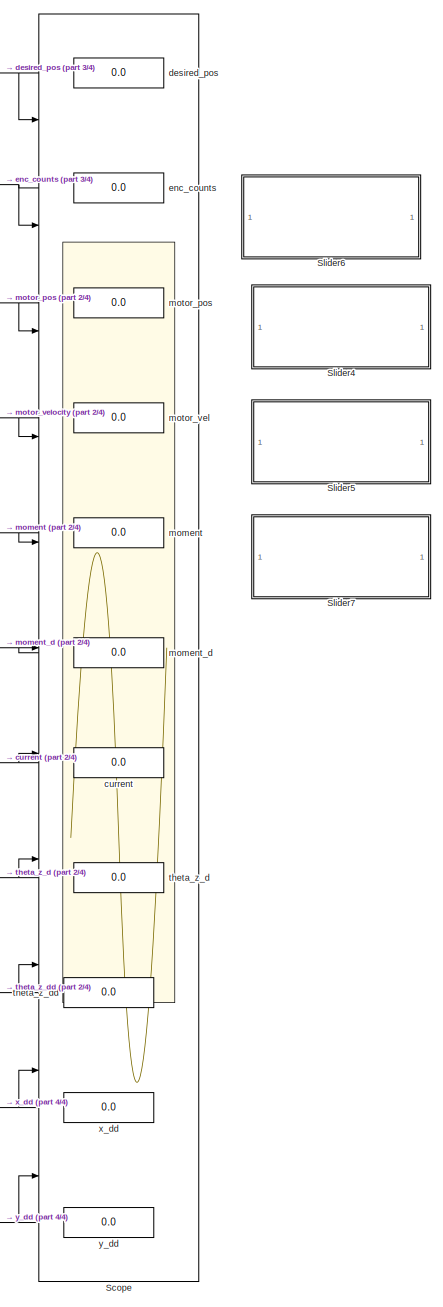
[diagram: root canvas - part 1/4, right side, full height]
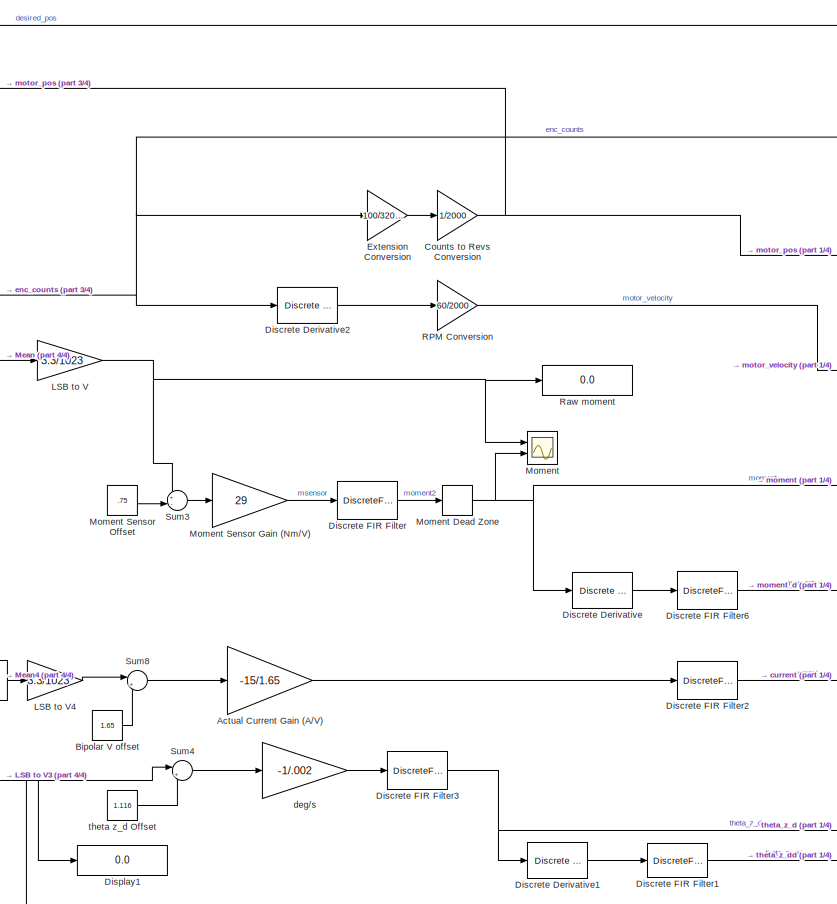
[diagram: root canvas - part 2/4, central region]
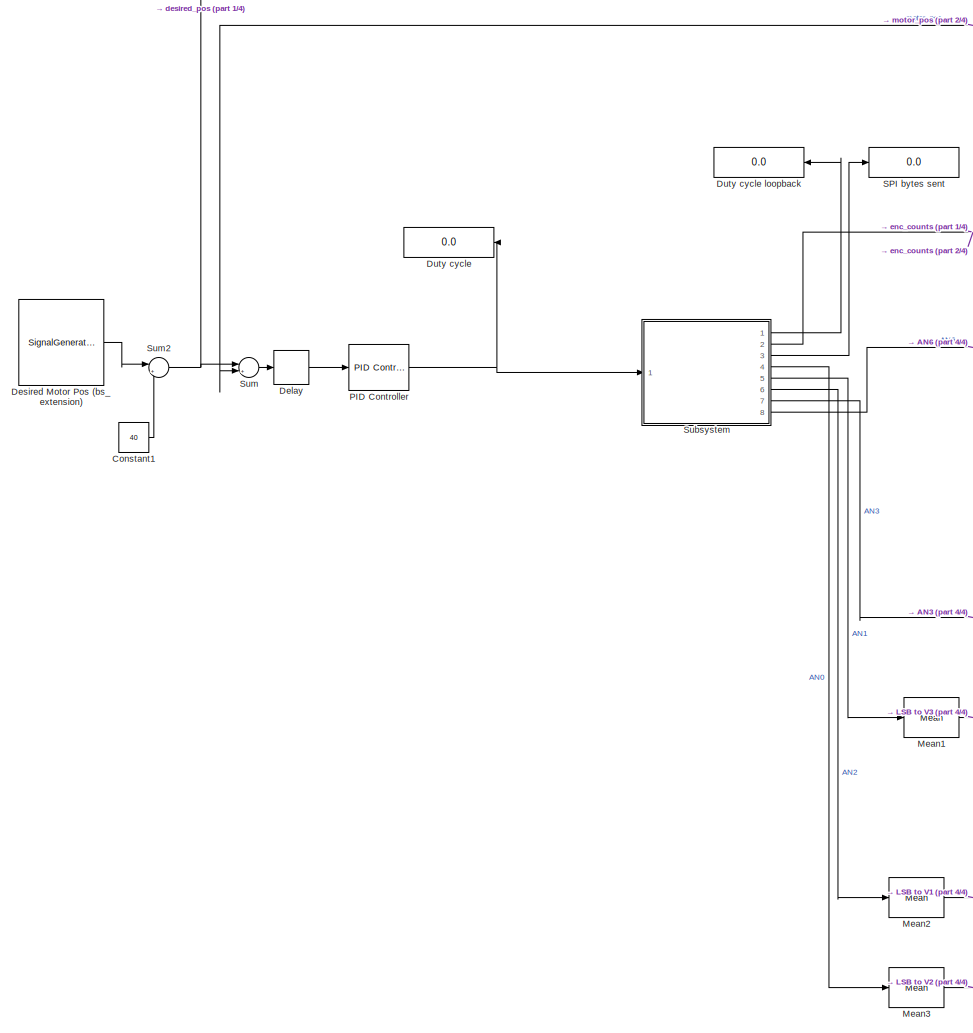
[diagram: root canvas - part 3/4, left side, full height]
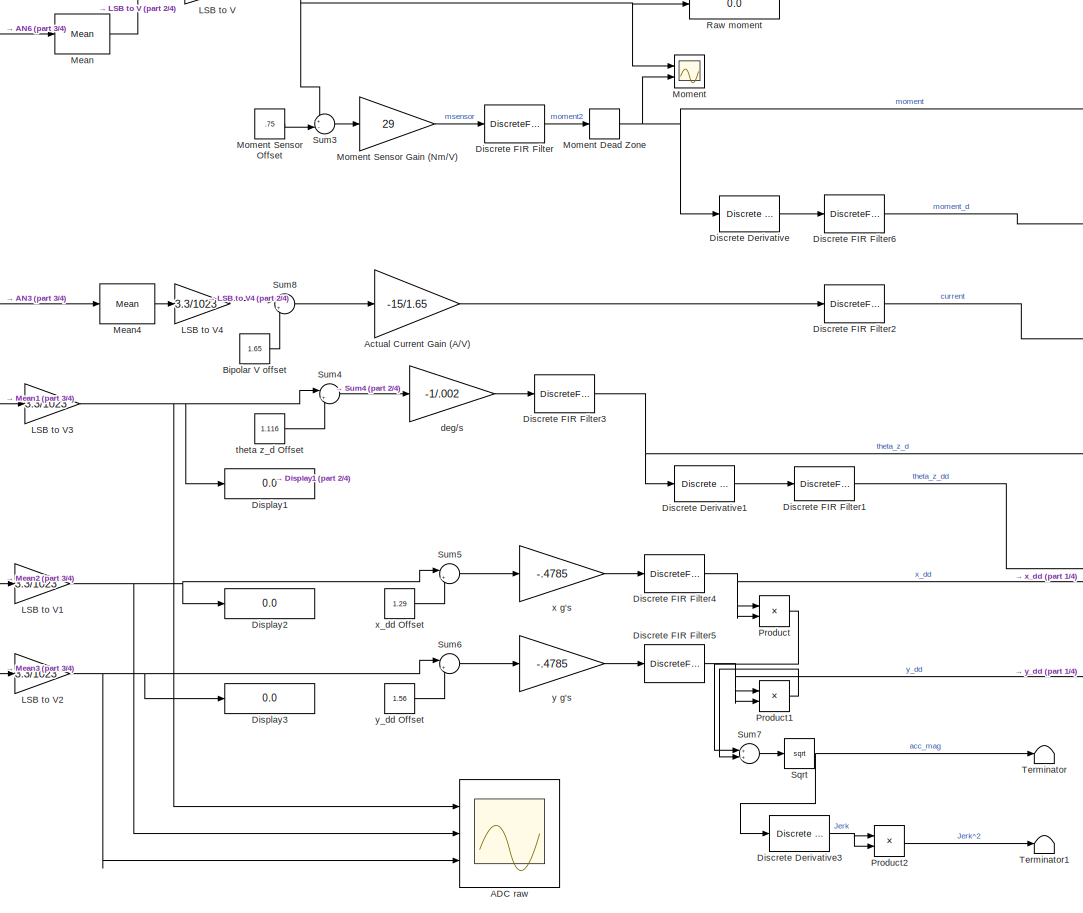
[diagram: root canvas - part 4/4, central region]
MODEL slx_aa104c078e16
KIND model
CONFIG AbsTol = auto
CONFIG EnableMultiTasking = on
CONFIG FixedStep = .001
CONFIG MaxStep = auto
CONFIG MinStep = auto
CONFIG RelTol = 1e-3
CONFIG SampleTimeConstraint = Unconstrained
CONFIG Solver = FixedStepAuto
CONFIG SolverName = FixedStepAuto
CONFIG StartTime = 0.0
CONFIG StopTime = inf
BLOCK [Scope] ADC raw
  NumInputPorts = 3
  Ports = [3]
  ScopeSpecificationString = Simulink.scopes.TimeScopeBlockCfg('CurrentConfiguration', extmgr.ConfigurationSet(extmgr.Configuration('Core','General UI',true),extmgr.Configuration('Core','Source UI',true),extmgr.Configuration('Sources','WiredSimulink',true,'DataLoggingVariableName','ScopeData1','DataLogging',true,'DataLoggingSaveFormat','StructureWithTime'),extmgr.Configuration('Visuals','Time Domain',true,'SerializedDisplays'...<+2721ch>
BLOCK [Gain] Actual Current Gain (A//V)
  Gain = -15/1.65
  OutDataTypeStr = Inherit: Inherit via internal rule
  ParamDataTypeStr = Inherit: Inherit via internal rule
  SaturateOnIntegerOverflow = off
BLOCK [Constant] Bipolar V offset
  Value = 1.65
BLOCK [Constant] Constant1
  Value = 40
BLOCK [Gain] Counts to Revs Conversion
  Commented = through
  Gain = 1/2000
  OutDataTypeStr = double
  ParamDataTypeStr = double
  SaturateOnIntegerOverflow = off
BLOCK [Delay] Delay
  DelayLength = 1
  InitialCondition = 0
  InputPortMap = u0
  Ports = [1, 1]
BLOCK [SignalGenerator] Desired Motor Pos (bs_extension)
  Amplitude = 40
  Ports = [0, 1]
  WaveForm = square
BLOCK [Reference] Discrete Derivative  REF=simulink/Discrete/Discrete Derivative
  Ports = [1, 1]
  SourceBlock = simulink/Discrete/Discrete Derivative
  SourceProductBaseCode = SL
  SourceProductName = Simulink
  SourceType = Discrete Derivative
BLOCK [Reference] Discrete Derivative1  REF=simulink/Discrete/Discrete Derivative
  Ports = [1, 1]
  SourceBlock = simulink/Discrete/Discrete Derivative
  SourceProductBaseCode = SL
  SourceProductName = Simulink
  SourceType = Discrete Derivative
BLOCK [Reference] Discrete Derivative2  REF=simulink/Discrete/Discrete Derivative
  Ports = [1, 1]
  SourceBlock = simulink/Discrete/Discrete Derivative
  SourceProductBaseCode = SL
  SourceProductName = Simulink
  SourceType = Discrete Derivative
BLOCK [Reference] Discrete Derivative3  REF=simulink/Discrete/Discrete Derivative
  Ports = [1, 1]
  SourceBlock = simulink/Discrete/Discrete Derivative
  SourceProductBaseCode = SL
  SourceProductName = Simulink
  SourceType = Discrete Derivative
BLOCK [DiscreteFir] Discrete FIR Filter
  Coefficients = [.1 .1 .1 .1 .1 .1 .1 .1 .1 .1]
  InputPortMap = u0
  OutputPortMap = o0
  Ports = [1, 1]
BLOCK [DiscreteFir] Discrete FIR Filter1
  Coefficients = [.1 .1 .1 .1 .1 .1 .1 .1 .1 .1]
  InputPortMap = u0
  OutputPortMap = o0
  Ports = [1, 1]
BLOCK [DiscreteFir] Discrete FIR Filter2
  Coefficients = [.1 .1 .1 .1 .1 .1 .1 .1 .1 .1]
  InputPortMap = u0
  OutputPortMap = o0
  Ports = [1, 1]
BLOCK [DiscreteFir] Discrete FIR Filter3
  Coefficients = [.1 .1 .1 .1 .1 .1 .1 .1 .1 .1]
  InputPortMap = u0
  OutputPortMap = o0
  Ports = [1, 1]
BLOCK [DiscreteFir] Discrete FIR Filter4
  Coefficients = [.1 .1 .1 .1 .1 .1 .1 .1 .1 .1]
  InputPortMap = u0
  OutputPortMap = o0
  Ports = [1, 1]
BLOCK [DiscreteFir] Discrete FIR Filter5
  Coefficients = [.1 .1 .1 .1 .1 .1 .1 .1 .1 .1]
  InputPortMap = u0
  OutputPortMap = o0
  Ports = [1, 1]
BLOCK [DiscreteFir] Discrete FIR Filter6
  Coefficients = [.1 .1 .1 .1 .1 .1 .1 .1 .1 .1]
  InputPortMap = u0
  OutputPortMap = o0
  Ports = [1, 1]
BLOCK [Display] Display1
  Decimation = 1
  Ports = [1]
BLOCK [Display] Display2
  Decimation = 1
  Ports = [1]
BLOCK [Display] Display3
  Decimation = 1
  Ports = [1]
BLOCK [Display] Duty cycle
  Decimation = 1
  Ports = [1]
BLOCK [Display] Duty cycle loopback
  Decimation = 1
  Ports = [1]
BLOCK [Gain] Extension Conversion
  Gain = 100/32000
  OutDataTypeStr = double
  ParamDataTypeStr = double
  SaturateOnIntegerOverflow = off
BLOCK [Gain] LSB to V
  Gain = 3.3/1023
  OutDataTypeStr = Inherit: Inherit via internal rule
  ParamDataTypeStr = Inherit: Inherit via internal rule
  SaturateOnIntegerOverflow = off
BLOCK [Gain] LSB to V1
  Gain = 3.3/1023
  OutDataTypeStr = Inherit: Inherit via internal rule
  ParamDataTypeStr = Inherit: Inherit via internal rule
  SaturateOnIntegerOverflow = off
BLOCK [Gain] LSB to V2
  Gain = 3.3/1023
  OutDataTypeStr = Inherit: Inherit via internal rule
  ParamDataTypeStr = Inherit: Inherit via internal rule
  SaturateOnIntegerOverflow = off
BLOCK [Gain] LSB to V3
  Gain = 3.3/1023
  OutDataTypeStr = Inherit: Inherit via internal rule
  ParamDataTypeStr = Inherit: Inherit via internal rule
  SaturateOnIntegerOverflow = off
BLOCK [Gain] LSB to V4
  Gain = 3.3/1023
  OutDataTypeStr = Inherit: Inherit via internal rule
  ParamDataTypeStr = Inherit: Inherit via internal rule
  SaturateOnIntegerOverflow = off
BLOCK [Reference] Mean  REF=dspstat3/Mean
  Ports = [1, 1]
  SourceBlock = dspstat3/Mean
  SourceProductBaseCode = DS
  SourceProductName = DSP System Toolbox
  SourceType = Mean
  UserDataPersistent = on
BLOCK [Reference] Mean1  REF=dspstat3/Mean
  Ports = [1, 1]
  SourceBlock = dspstat3/Mean
  SourceProductBaseCode = DS
  SourceProductName = DSP System Toolbox
  SourceType = Mean
  UserDataPersistent = on
BLOCK [Reference] Mean2  REF=dspstat3/Mean
  Ports = [1, 1]
  SourceBlock = dspstat3/Mean
  SourceProductBaseCode = DS
  SourceProductName = DSP System Toolbox
  SourceType = Mean
  UserDataPersistent = on
BLOCK [Reference] Mean3  REF=dspstat3/Mean
  Ports = [1, 1]
  SourceBlock = dspstat3/Mean
  SourceProductBaseCode = DS
  SourceProductName = DSP System Toolbox
  SourceType = Mean
  UserDataPersistent = on
BLOCK [Reference] Mean4  REF=dspstat3/Mean
  Ports = [1, 1]
  SourceBlock = dspstat3/Mean
  SourceProductBaseCode = DS
  SourceProductName = DSP System Toolbox
  SourceType = Mean
  UserDataPersistent = on
BLOCK [Scope] Moment
  NumInputPorts = 2
  Ports = [2]
  ScopeSpecificationString = Simulink.scopes.TimeScopeBlockCfg('CurrentConfiguration', extmgr.ConfigurationSet(extmgr.Configuration('Core','General UI',true),extmgr.Configuration('Core','Source UI',true),extmgr.Configuration('Sources','WiredSimulink',true,'DataLoggingVariableName','ScopeData2','DataLoggingLimitDataPoints',true,'DataLoggingSaveFormat','Array','DataLoggingDecimation','1','DataLoggingDecimateData',true),extmgr.C...<+165ch>
BLOCK [DeadZone] Moment Dead Zone
  LowerValue = -.25
  UpperValue = .25
BLOCK [Gain] Moment Sensor Gain (Nm//V)
  Gain = 29
  OutDataTypeStr = Inherit: Inherit via internal rule
  ParamDataTypeStr = Inherit: Inherit via internal rule
  SaturateOnIntegerOverflow = off
BLOCK [Constant] Moment Sensor Offset
  Value = .75
BLOCK [Reference] PID Controller  REF=simulink/Continuous/PID Controller
  Ports = [1, 1]
  SourceBlock = simulink/Continuous/PID Controller
  SourceProductBaseCode = SL
  SourceProductName = Simulink
  SourceType = PID 1dof
BLOCK [Product] Product
  InputSameDT = off
  OutDataTypeStr = Inherit: Inherit via internal rule
  Ports = [2, 1]
  RndMeth = Floor
  SaturateOnIntegerOverflow = off
BLOCK [Product] Product1
  InputSameDT = off
  OutDataTypeStr = Inherit: Inherit via internal rule
  Ports = [2, 1]
  RndMeth = Floor
  SaturateOnIntegerOverflow = off
BLOCK [Product] Product2
  InputSameDT = off
  OutDataTypeStr = Inherit: Inherit via internal rule
  Ports = [2, 1]
  RndMeth = Floor
  SaturateOnIntegerOverflow = off
BLOCK [Gain] RPM Conversion
  Gain = 60/2000
  OutDataTypeStr = double
  ParamDataTypeStr = double
  SaturateOnIntegerOverflow = off
BLOCK [Display] Raw moment
  Decimation = 1
  Ports = [1]
BLOCK [Display] SPI bytes sent
  Decimation = 1
  Ports = [1]
BLOCK [Scope] Scope
  NumInputPorts = 11
  Ports = [11]
  ScopeSpecificationString = Simulink.scopes.TimeScopeBlockCfg('CurrentConfiguration', extmgr.ConfigurationSet(extmgr.Configuration('Core','General UI',true),extmgr.Configuration('Core','Source UI',true),extmgr.Configuration('Sources','WiredSimulink',true,'DataLogging',true,'DataLoggingSaveFormat','StructureWithTime'),extmgr.Configuration('Visuals','Time Domain',true,'SerializedDisplays',{struct('MinYLimReal','-10','MaxYLimRe...<+8820ch>
BLOCK [SubSystem] Slider4
  DialogController = hmiCreateDDGDialog
  IsWebBlock = on
  MaskHideContents = on
  Ports = []
  RequestExecContextInheritance = off
  Variant = off
BLOCK [SubSystem] Slider5
  DialogController = hmiCreateDDGDialog
  IsWebBlock = on
  MaskHideContents = on
  Ports = []
  RequestExecContextInheritance = off
  Variant = off
BLOCK [SubSystem] Slider6
  DialogController = hmiCreateDDGDialog
  IsWebBlock = on
  MaskHideContents = on
  Ports = []
  RequestExecContextInheritance = off
  Variant = off
BLOCK [SubSystem] Slider7
  DialogController = hmiCreateDDGDialog
  IsWebBlock = on
  MaskHideContents = on
  Ports = []
  RequestExecContextInheritance = off
  Variant = off
BLOCK [Sqrt] Sqrt
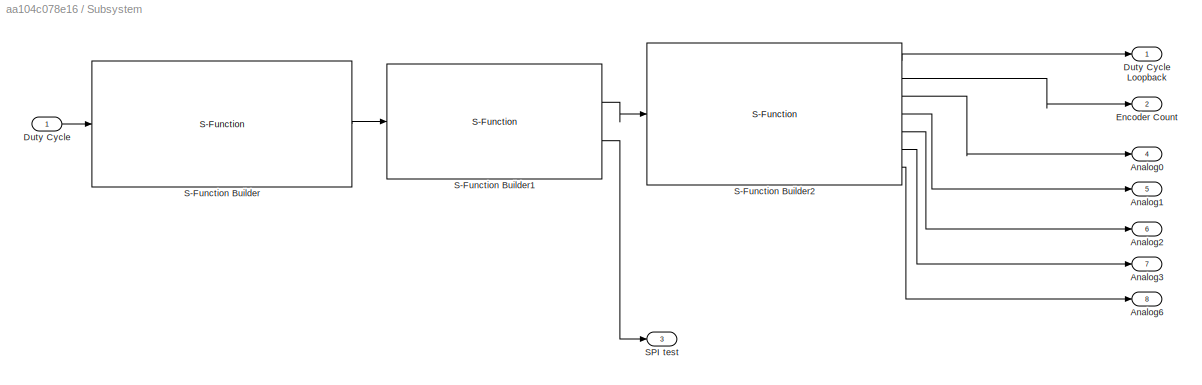
BLOCK [SubSystem] Subsystem
  Ports = [1, 8]
  RequestExecContextInheritance = off
  Variant = off
BLOCK [Outport] Subsystem/Analog0
  IconDisplay = Port number
  Port = 4
BLOCK [Outport] Subsystem/Analog1
  IconDisplay = Port number
  Port = 5
BLOCK [Outport] Subsystem/Analog2
  IconDisplay = Port number
  Port = 6
BLOCK [Outport] Subsystem/Analog3
  IconDisplay = Port number
  Port = 7
BLOCK [Outport] Subsystem/Analog6
  IconDisplay = Port number
  Port = 8
BLOCK [Inport] Subsystem/Duty Cycle
  IconDisplay = Port number
BLOCK [Outport] Subsystem/Duty Cycle Loopback
  IconDisplay = Port number
BLOCK [Outport] Subsystem/Encoder Count
  IconDisplay = Port number
  Port = 2
BLOCK [S-Function] Subsystem/S-Function Builder
  CopyFcn = set_param(gcbh,'LinkStatus','none')
  EnableBusSupport = off
  FunctionName = inputs_to_SPI_bytes_test
  InitFcn = try, set_param(gcb,'FunctionName','inputs_to_SPI_bytes_test'), end
  OpenFcn = sfunctionwizard(gcbh)
  Ports = [1, 1]
  PreSaveFcn = try, set_param(gcb,'FunctionName','inputs_to_SPI_bytes_test'), end
  SFcnIsStateOwnerBlock = off
  SFunctionDeploymentMode = off
  SFunctionModules = inputs_to_SPI_bytes_test_wrapper
BLOCK [S-Function] Subsystem/S-Function Builder1
  CopyFcn = set_param(gcbh,'LinkStatus','none')
  EnableBusSupport = off
  FunctionName = SPI_test
  InitFcn = try, set_param(gcb,'FunctionName','SPI_test'), end
  OpenFcn = sfunctionwizard(gcbh)
  Ports = [1, 2]
  PreSaveFcn = try, set_param(gcb,'FunctionName','SPI_test'), end
  SFcnIsStateOwnerBlock = off
  SFunctionDeploymentMode = off
  SFunctionModules = SPI_test_wrapper
BLOCK [S-Function] Subsystem/S-Function Builder2
  CopyFcn = set_param(gcbh,'LinkStatus','none')
  EnableBusSupport = off
  FunctionName = SPI_bytes_to_outputs_test
  InitFcn = try, set_param(gcb,'FunctionName','SPI_bytes_to_outputs_test'), end
  OpenFcn = sfunctionwizard(gcbh)
  Ports = [1, 7]
  PreSaveFcn = try, set_param(gcb,'FunctionName','SPI_bytes_to_outputs_test'), end
  SFcnIsStateOwnerBlock = off
  SFunctionDeploymentMode = off
  SFunctionModules = SPI_bytes_to_outputs_test_wrapper
BLOCK [Outport] Subsystem/SPI test
  IconDisplay = Port number
  Port = 3
BLOCK [Sum] Sum
  IconShape = round
  InputSameDT = off
  Inputs = |+-
  OutDataTypeStr = Inherit: Inherit via internal rule
  Ports = [2, 1]
  SaturateOnIntegerOverflow = off
BLOCK [Sum] Sum2
  IconShape = round
  InputSameDT = off
  Inputs = |++
  OutDataTypeStr = Inherit: Inherit via internal rule
  Ports = [2, 1]
  SaturateOnIntegerOverflow = off
BLOCK [Sum] Sum3
  IconShape = round
  InputSameDT = off
  Inputs = +-|
  OutDataTypeStr = Inherit: Inherit via internal rule
  Ports = [2, 1]
  SaturateOnIntegerOverflow = off
BLOCK [Sum] Sum4
  IconShape = round
  InputSameDT = off
  Inputs = |+-
  OutDataTypeStr = Inherit: Inherit via internal rule
  Ports = [2, 1]
  SaturateOnIntegerOverflow = off
BLOCK [Sum] Sum5
  IconShape = round
  InputSameDT = off
  Inputs = |+-
  OutDataTypeStr = Inherit: Inherit via internal rule
  Ports = [2, 1]
  SaturateOnIntegerOverflow = off
BLOCK [Sum] Sum6
  IconShape = round
  InputSameDT = off
  Inputs = |+-
  OutDataTypeStr = Inherit: Inherit via internal rule
  Ports = [2, 1]
  SaturateOnIntegerOverflow = off
BLOCK [Sum] Sum7
  InputSameDT = off
  OutDataTypeStr = Inherit: Inherit via internal rule
  Ports = [2, 1]
  SaturateOnIntegerOverflow = off
BLOCK [Sum] Sum8
  IconShape = round
  InputSameDT = off
  Inputs = |+-
  OutDataTypeStr = Inherit: Inherit via internal rule
  Ports = [2, 1]
  SaturateOnIntegerOverflow = off
BLOCK [Terminator] Terminator
BLOCK [Terminator] Terminator1
BLOCK [Display] current
  Decimation = 1
  Ports = [1]
BLOCK [Gain] deg//s
  Gain = -1/.002
  OutDataTypeStr = Inherit: Inherit via internal rule
  ParamDataTypeStr = Inherit: Inherit via internal rule
  SaturateOnIntegerOverflow = off
BLOCK [Display] desired_pos
  Decimation = 1
  Ports = [1]
BLOCK [Display] enc_counts
  Decimation = 1
  Ports = [1]
BLOCK [Display] moment
  Decimation = 1
  Ports = [1]
BLOCK [Display] moment_d
  Decimation = 1
  Ports = [1]
BLOCK [Display] motor_pos
  Decimation = 1
  Ports = [1]
BLOCK [Display] motor_vel
  Decimation = 1
  Ports = [1]
BLOCK [Constant] theta z_d Offset 
  Value = 1.116
BLOCK [Display] theta_z_d
  Decimation = 1
  Ports = [1]
BLOCK [Display] theta_z_dd
  Decimation = 1
  Ports = [1]
BLOCK [Gain] x g's
  Gain = -.4785
  OutDataTypeStr = Inherit: Inherit via internal rule
  ParamDataTypeStr = Inherit: Inherit via internal rule
  SaturateOnIntegerOverflow = off
BLOCK [Display] x_dd
  Decimation = 1
  Ports = [1]
BLOCK [Constant] x_dd Offset
  Value = 1.29
BLOCK [Gain] y g's
  Gain = -.4785
  OutDataTypeStr = Inherit: Inherit via internal rule
  ParamDataTypeStr = Inherit: Inherit via internal rule
  SaturateOnIntegerOverflow = off
BLOCK [Display] y_dd
  Decimation = 1
  Ports = [1]
BLOCK [Constant] y_dd Offset
  Value = 1.56
LINE Actual Current Gain (A//V):1 -> Discrete FIR Filter2:1
LINE Bipolar V offset:1 -> Sum8:2
LINE Constant1:1 -> Sum2:2
NET Counts to Revs Conversion:1 -> Scope:3, Sum:2, motor_pos:1
LINE Delay:1 -> PID Controller:1
LINE Desired Motor Pos (bs_extension):1 -> Sum2:1
LINE Discrete Derivative1:1 -> Discrete FIR Filter1:1
LINE Discrete Derivative2:1 -> RPM Conversion:1
NET Discrete Derivative3:1 -> Product2:1, Product2:2
LINE Discrete Derivative:1 -> Discrete FIR Filter6:1
NET Discrete FIR Filter1:1 -> Scope:9, theta_z_dd:1
NET Discrete FIR Filter2:1 -> Scope:7, current:1
NET Discrete FIR Filter3:1 -> Discrete Derivative1:1, Scope:8, theta_z_d:1
NET Discrete FIR Filter4:1 -> Product:1, Product:2, Scope:10, x_dd:1
NET Discrete FIR Filter5:1 -> Product1:1, Product1:2, Scope:11, y_dd:1
NET Discrete FIR Filter6:1 -> Scope:6, moment_d:1
LINE Discrete FIR Filter:1 -> Moment Dead Zone:1
LINE Extension Conversion:1 -> Counts to Revs Conversion:1
NET LSB to V1:1 -> ADC raw:2, Display2:1, Sum5:1
NET LSB to V2:1 -> ADC raw:3, Display3:1, Sum6:1
NET LSB to V3:1 -> ADC raw:1, Display1:1, Sum4:1
LINE LSB to V4:1 -> Sum8:1
NET LSB to V:1 -> Moment:1, Raw moment:1, Sum3:1
LINE Mean1:1 -> LSB to V3:1
LINE Mean2:1 -> LSB to V1:1
LINE Mean3:1 -> LSB to V2:1
LINE Mean4:1 -> LSB to V4:1
LINE Mean:1 -> LSB to V:1
NET Moment Dead Zone:1 -> Discrete Derivative:1, Moment:2, Scope:5, moment:1
LINE Moment Sensor Gain (Nm//V):1 -> Discrete FIR Filter:1
LINE Moment Sensor Offset:1 -> Sum3:2
NET PID Controller:1 -> Duty cycle:1, Subsystem:1
LINE Product1:1 -> Sum7:2
LINE Product2:1 -> Terminator1:1
LINE Product:1 -> Sum7:1
NET RPM Conversion:1 -> Scope:4, motor_vel:1
NET Sqrt:1 -> Discrete Derivative3:1, Terminator:1
LINE Subsystem/Duty Cycle:1 -> Subsystem/S-Function Builder:1
LINE Subsystem/S-Function Builder1:1 -> Subsystem/S-Function Builder2:1
LINE Subsystem/S-Function Builder1:2 -> Subsystem/SPI test:1
LINE Subsystem/S-Function Builder2:1 -> Subsystem/Duty Cycle Loopback:1
LINE Subsystem/S-Function Builder2:2 -> Subsystem/Encoder Count:1
LINE Subsystem/S-Function Builder2:3 -> Subsystem/Analog0:1
LINE Subsystem/S-Function Builder2:4 -> Subsystem/Analog1:1
LINE Subsystem/S-Function Builder2:5 -> Subsystem/Analog2:1
LINE Subsystem/S-Function Builder2:6 -> Subsystem/Analog3:1
LINE Subsystem/S-Function Builder2:7 -> Subsystem/Analog6:1
LINE Subsystem/S-Function Builder:1 -> Subsystem/S-Function Builder1:1
LINE Subsystem:1 -> Duty cycle loopback:1
NET Subsystem:2 -> Discrete Derivative2:1, Extension Conversion:1, Scope:2, enc_counts:1
LINE Subsystem:3 -> SPI bytes sent:1
LINE Subsystem:4 -> Mean3:1
LINE Subsystem:5 -> Mean1:1
LINE Subsystem:6 -> Mean2:1
LINE Subsystem:7 -> Mean4:1
LINE Subsystem:8 -> Mean:1
NET Sum2:1 -> Scope:1, Sum:1, desired_pos:1
LINE Sum3:1 -> Moment Sensor Gain (Nm//V):1
LINE Sum4:1 -> deg//s:1
LINE Sum5:1 -> x g's:1
LINE Sum6:1 -> y g's:1
LINE Sum7:1 -> Sqrt:1
LINE Sum8:1 -> Actual Current Gain (A//V):1
LINE Sum:1 -> Delay:1
LINE deg//s:1 -> Discrete FIR Filter3:1
LINE theta z_d Offset :1 -> Sum4:2
LINE x g's:1 -> Discrete FIR Filter4:1
LINE x_dd Offset:1 -> Sum5:2
LINE y g's:1 -> Discrete FIR Filter5:1
LINE y_dd Offset:1 -> Sum6:2
note: NET lines group one-source signal fan-out (src -> all destinations, sorted); 1:1 wires keep LINE
